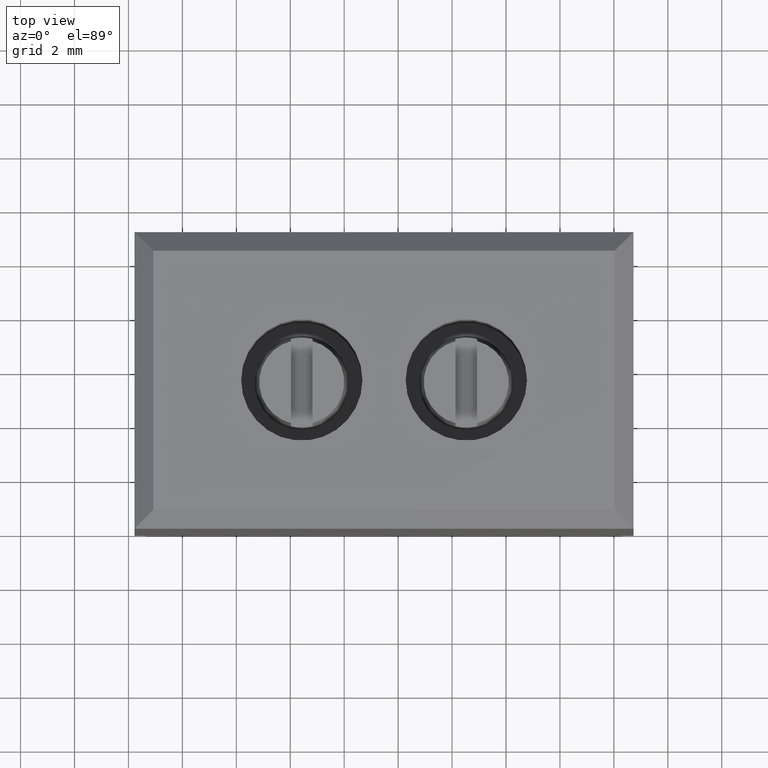
[diagram: clean part render]
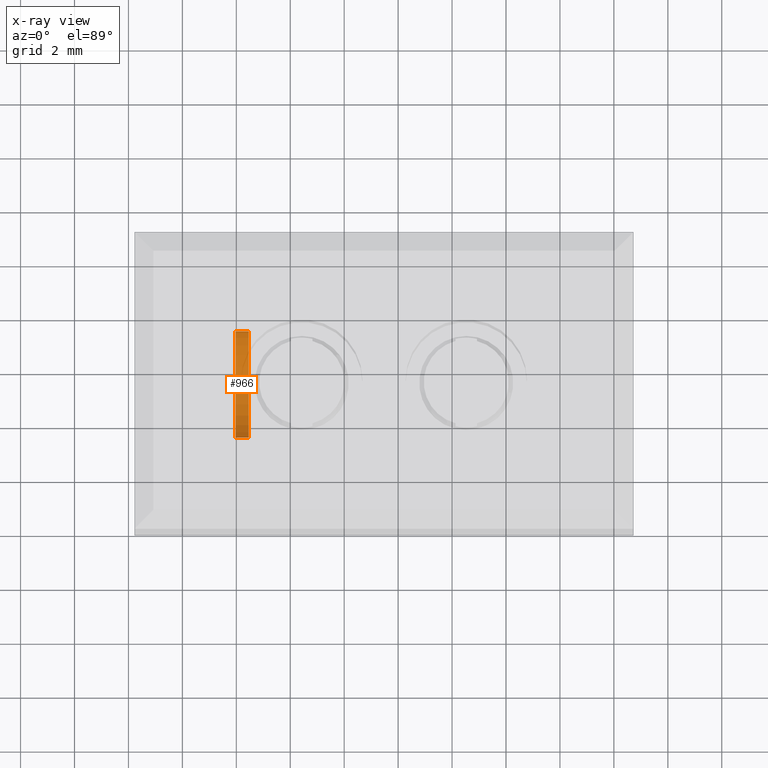
[diagram: x-ray — body ghosted, one internal face saturated and labeled with its STEP entity id]
A machine part, top view, then the same camera in x-ray: the body is ghosted and one INTERNAL B-rep face — a face not visible from any outside direction — is saturated and labeled: STEP entity #966.
In plain terms, the highlighted cylindrical surface (partial cylindrical patch) has radius 1.975 mm, axis along (-1, 0, 0).
Its self-contained STEP definition (entity closure, byte-faithful):
#29 = VERTEX_POINT ( 'NONE', #2142 ) ;
#42 = VERTEX_POINT ( 'NONE', #2185 ) ;
#76 = EDGE_LOOP ( 'NONE', ( #251, #256, #252, #253 ) ) ;
#251 = ORIENTED_EDGE ( 'NONE', *, *, #352, .F. ) ;
#252 = ORIENTED_EDGE ( 'NONE', *, *, #418, .T. ) ;
#253 = ORIENTED_EDGE ( 'NONE', *, *, #449, .F. ) ;
#256 = ORIENTED_EDGE ( 'NONE', *, *, #348, .T. ) ;
#348 = EDGE_CURVE ( 'NONE', #29, #2199, #2288, .T. ) ;
#352 = EDGE_CURVE ( 'NONE', #29, #42, #1015, .T. ) ;
#418 = EDGE_CURVE ( 'NONE', #2199, #2173, #1084, .T. ) ;
#449 = EDGE_CURVE ( 'NONE', #42, #2173, #1881, .T. ) ;
#966 = ADVANCED_FACE ( 'NONE', ( #1365 ), #1336, .T. ) ;
#1012 = VECTOR ( 'NONE', #2300, 1000.000000000000000 ) ;
#1015 = CIRCLE ( 'NONE', #1017, 1.974999999999838000 ) ;
#1017 = AXIS2_PLACEMENT_3D ( 'NONE', #2329, #2324, #2333 ) ;
#1084 = CIRCLE ( 'NONE', #1106, 1.974999999999838000 ) ;
#1106 = AXIS2_PLACEMENT_3D ( 'NONE', #1778, #1802, #1792 ) ;
#1164 = VECTOR ( 'NONE', #1899, 1000.000000000000000 ) ;
#1317 = AXIS2_PLACEMENT_3D ( 'NONE', #1353, #1339, #1354 ) ;
#1336 = CYLINDRICAL_SURFACE ( 'NONE', #1317, 1.974999999999838000 ) ;
#1339 = DIRECTION ( 'NONE',  ( -1.000000000000000000, 0.0000000000000000000, 0.0000000000000000000 ) ) ;
#1353 = CARTESIAN_POINT ( 'NONE',  ( 6.975759313016638400, 5.527552627865972600, 5.502378538152412600 ) ) ;
#1354 = DIRECTION ( 'NONE',  ( 0.0000000000000000000, -1.000000000000000000, -3.807608237144342100E-013 ) ) ;
#1365 = FACE_OUTER_BOUND ( 'NONE', #76, .T. ) ;
#1472 = CARTESIAN_POINT ( 'NONE',  ( -4.024240686983482400, 3.552552627866134600, 5.502378538151524400 ) ) ;
#1502 = CARTESIAN_POINT ( 'NONE',  ( -4.024240686983482400, 7.502552627865810600, 5.502378538152856700 ) ) ;
#1778 = CARTESIAN_POINT ( 'NONE',  ( -4.024240686983482400, 5.527552627865972600, 5.502378538152412600 ) ) ;
#1792 = DIRECTION ( 'NONE',  ( 0.0000000000000000000, 1.000000000000000000, 3.807608237144342100E-013 ) ) ;
#1802 = DIRECTION ( 'NONE',  ( 1.000000000000000000, 0.0000000000000000000, 0.0000000000000000000 ) ) ;
#1881 = LINE ( 'NONE', #1896, #1164 ) ;
#1896 = CARTESIAN_POINT ( 'NONE',  ( 6.975759313016638400, 7.502552627865810600, 5.502378538152856700 ) ) ;
#1899 = DIRECTION ( 'NONE',  ( -1.000000000000000000, 0.0000000000000000000, 0.0000000000000000000 ) ) ;
#2142 = CARTESIAN_POINT ( 'NONE',  ( -3.537617578726982800, 3.552552627866134600, 5.502378538151524400 ) ) ;
#2173 = VERTEX_POINT ( 'NONE', #1502 ) ;
#2185 = CARTESIAN_POINT ( 'NONE',  ( -3.537617578726982800, 7.502552627865810600, 5.502378538152856700 ) ) ;
#2199 = VERTEX_POINT ( 'NONE', #1472 ) ;
#2288 = LINE ( 'NONE', #2292, #1012 ) ;
#2292 = CARTESIAN_POINT ( 'NONE',  ( 6.975759313016638400, 3.552552627866134600, 5.502378538151524400 ) ) ;
#2300 = DIRECTION ( 'NONE',  ( -1.000000000000000000, 0.0000000000000000000, 0.0000000000000000000 ) ) ;
#2324 = DIRECTION ( 'NONE',  ( 1.000000000000000000, 0.0000000000000000000, 1.005910077606673700E-016 ) ) ;
#2329 = CARTESIAN_POINT ( 'NONE',  ( -3.537617578726982800, 5.527552627865972600, 5.502378538152412600 ) ) ;
#2333 = DIRECTION ( 'NONE',  ( 0.0000000000000000000, 8.783410004946579000E-016, 1.000000000000000000 ) ) ;